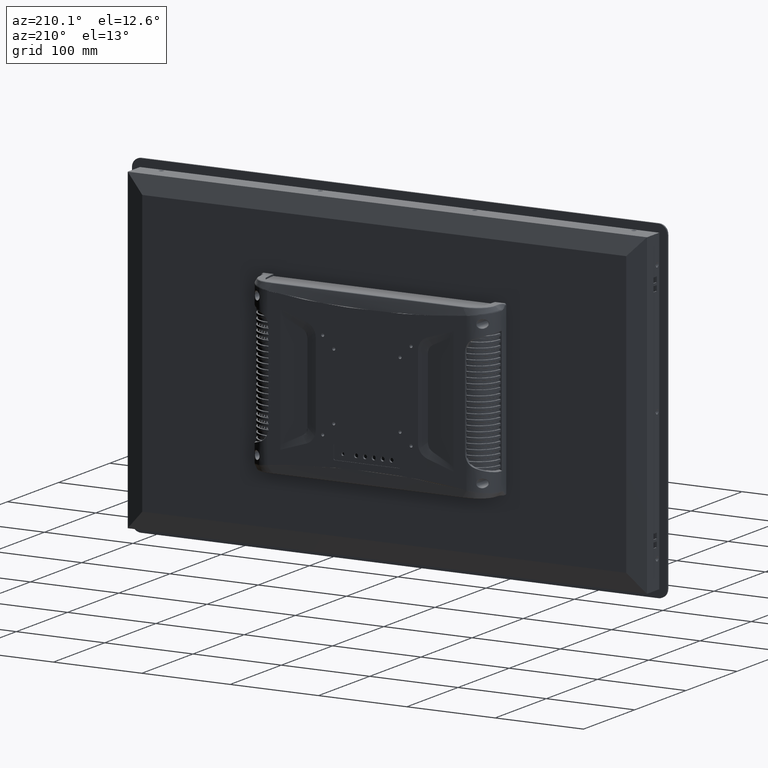
[diagram: clean part render]
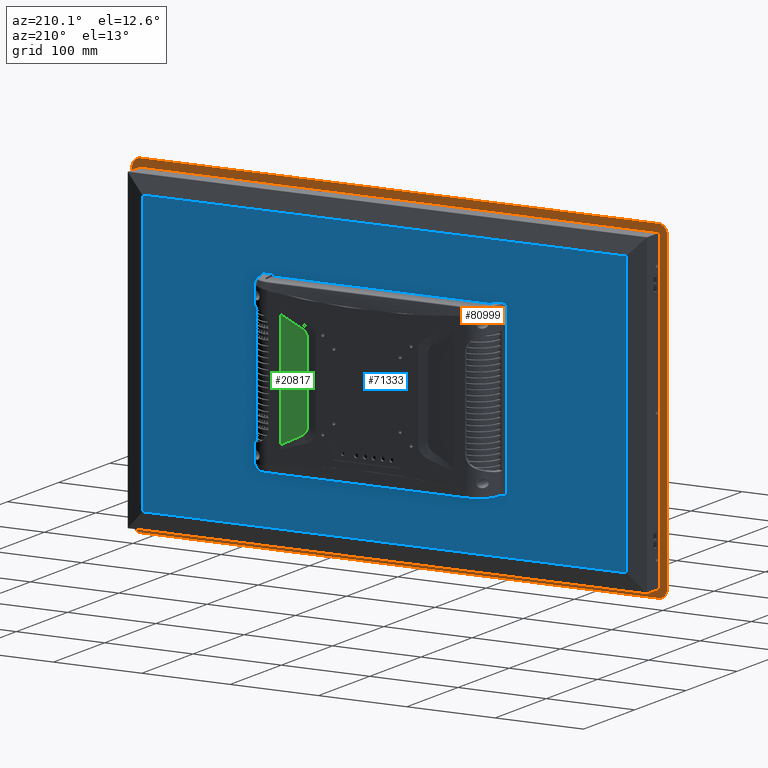
[diagram: same view with three faces highlighted in distinct colors, each labeled with its STEP entity id]
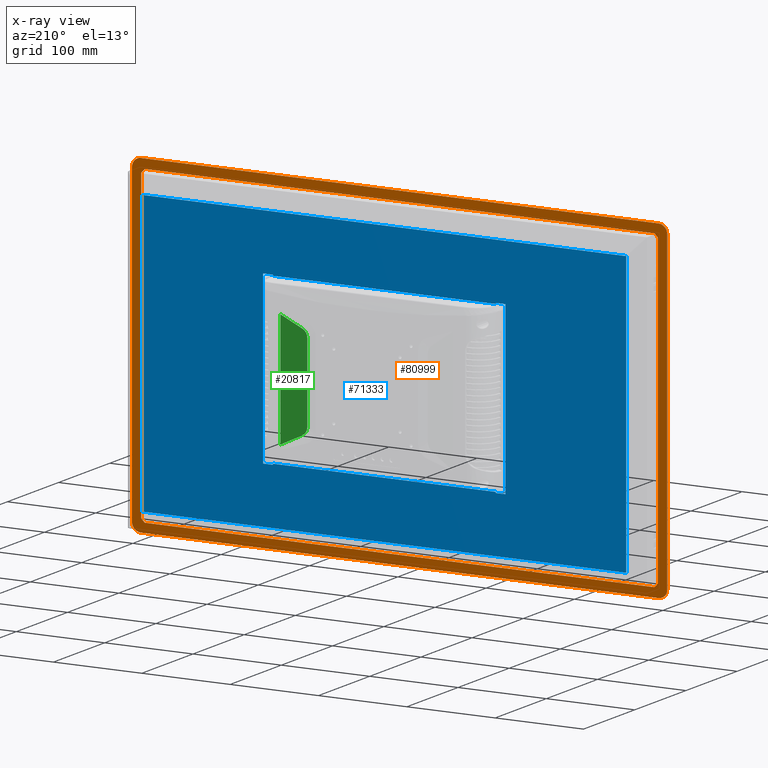
[diagram: x-ray of the same camera — body ghosted, the three highlighted faces saturated]
A machine part, auxiliary view with three faces highlighted in distinct colors.
The next image is the same camera in x-ray (body ghosted, the three faces saturated) — at least one of them is partly hidden behind the body in this view.
Their STEP definitions:

[orange] entity #80999 — the highlighted planar face has unit normal (0, 1, -0).
#396 = DIRECTION ( 'NONE',  ( -1.613629597899712099E-15, 1.000000000000000000, 3.895646460477871379E-15 ) ) ;
#571 = AXIS2_PLACEMENT_3D ( 'NONE', #88136, #396, #81314 ) ;
#803 = CARTESIAN_POINT ( 'NONE',  ( 291.9142135624997536, -3.500000000000000000, 174.0857864374998769 ) ) ;
#1245 = DIRECTION ( 'NONE',  ( -1.000000000000000000, 0.0000000000000000000, 0.0000000000000000000 ) ) ;
#1337 = VECTOR ( 'NONE', #32166, 1000.000000000000000 ) ;
#1345 = AXIS2_PLACEMENT_3D ( 'NONE', #53810, #70944, #87961 ) ;
#1992 = ORIENTED_EDGE ( 'NONE', *, *, #4823, .F. ) ;
#2088 = VERTEX_POINT ( 'NONE', #50259 ) ;
#2184 = DIRECTION ( 'NONE',  ( 1.613629597899712099E-15, 1.000000000000000000, -3.895646460477871379E-15 ) ) ;
#2190 = VERTEX_POINT ( 'NONE', #77764 ) ;
#2335 = DIRECTION ( 'NONE',  ( 1.000000000000000000, 8.673617379884460717E-17, 0.0000000000000000000 ) ) ;
#2538 = DIRECTION ( 'NONE',  ( -2.775557561565854944E-14, -3.903127820951983515E-15, -1.000000000000000000 ) ) ;
#2611 = EDGE_CURVE ( 'NONE', #47197, #62226, #105651, .T. ) ;
#3260 = CARTESIAN_POINT ( 'NONE',  ( -292.5000000000001137, -3.500000000000000000, 172.6715728752999723 ) ) ;
#4823 = EDGE_CURVE ( 'NONE', #47197, #2190, #12953, .T. ) ;
#4906 = CARTESIAN_POINT ( 'NONE',  ( 289.0857864375861936, -3.500000000000000444, 176.9142135624366574 ) ) ;
#5651 = CARTESIAN_POINT ( 'NONE',  ( -291.9142135624999810, -3.500000000000000000, -174.0857864374998485 ) ) ;
#6103 = DIRECTION ( 'NONE',  ( -0.0000000000000000000, 1.000000000000000000, -0.0000000000000000000 ) ) ;
#7342 = VERTEX_POINT ( 'NONE', #41118 ) ;
#7823 = EDGE_CURVE ( 'NONE', #82434, #17065, #44975, .T. ) ;
#8027 = EDGE_CURVE ( 'NONE', #50940, #7342, #48927, .T. ) ;
#8978 = VECTOR ( 'NONE', #10860, 1000.000000000000000 ) ;
#10708 = CARTESIAN_POINT ( 'NONE',  ( -287.6715728753000008, -3.500000000000007550, 175.5000000000024443 ) ) ;
#10860 = DIRECTION ( 'NONE',  ( 0.0000000000000000000, 0.0000000000000000000, -1.000000000000000000 ) ) ;
#11965 = VERTEX_POINT ( 'NONE', #45586 ) ;
#12953 = LINE ( 'NONE', #77428, #8978 ) ;
#13326 = EDGE_CURVE ( 'NONE', #102600, #11965, #35852, .T. ) ;
#13577 = LINE ( 'NONE', #803, #61465 ) ;
#14237 = DIRECTION ( 'NONE',  ( 0.7071067811865058284, 0.0000000000000000000, -0.7071067811865890951 ) ) ;
#14243 = VERTEX_POINT ( 'NONE', #84760 ) ;
#15514 = AXIS2_PLACEMENT_3D ( 'NONE', #70468, #53343, #86742 ) ;
#16037 = CIRCLE ( 'NONE', #1345, 10.00000000000023093 ) ;
#16038 = DIRECTION ( 'NONE',  ( 0.0000000000000000000, 0.0000000000000000000, 1.000000000000000000 ) ) ;
#16402 = CARTESIAN_POINT ( 'NONE',  ( -303.0000000000000000, -3.500000000000000000, 0.0000000000000000000 ) ) ;
#16493 = EDGE_CURVE ( 'NONE', #97668, #54382, #42688, .T. ) ;
#17065 = VERTEX_POINT ( 'NONE', #33161 ) ;
#17423 = VECTOR ( 'NONE', #27068, 1000.000000000000000 ) ;
#18135 = CARTESIAN_POINT ( 'NONE',  ( 303.0000000000000000, -3.500000000000000000, 178.0000000678504080 ) ) ;
#18627 = LINE ( 'NONE', #81234, #1337 ) ;
#18990 = EDGE_CURVE ( 'NONE', #94891, #43946, #36631, .T. ) ;
#20115 = LINE ( 'NONE', #20613, #82586 ) ;
#20375 = CIRCLE ( 'NONE', #65647, 1.999999999998419709 ) ;
#20613 = CARTESIAN_POINT ( 'NONE',  ( -289.0857864374995643, -3.500000000000000000, 176.9142135624995831 ) ) ;
#21157 = ORIENTED_EDGE ( 'NONE', *, *, #42877, .F. ) ;
#21217 = CARTESIAN_POINT ( 'NONE',  ( 287.6715728752998871, -3.500000000000003997, 175.5000000000012221 ) ) ;
#21941 = VERTEX_POINT ( 'NONE', #4906 ) ;
#22211 = DIRECTION ( 'NONE',  ( 0.0000000000000000000, -1.951563910475341736E-15, 1.000000000000000000 ) ) ;
#22634 = ORIENTED_EDGE ( 'NONE', *, *, #44583, .T. ) ;
#25866 = CIRCLE ( 'NONE', #15514, 9.999999999999371170 ) ;
#26084 = CARTESIAN_POINT ( 'NONE',  ( -290.5000000000017621, -3.500000000000000000, 172.6715728752999723 ) ) ;
#27068 = DIRECTION ( 'NONE',  ( 1.000000000000000000, -0.0000000000000000000, -0.0000000000000000000 ) ) ;
#27609 = CARTESIAN_POINT ( 'NONE',  ( 0.0000000000000000000, -3.500000000000000000, 177.4999999999998863 ) ) ;
#28144 = CIRCLE ( 'NONE', #94720, 1.999999999998530731 ) ;
#28436 = CARTESIAN_POINT ( 'NONE',  ( -291.9142135624368279, -3.499999999999999556, -174.0857864375859378 ) ) ;
#28643 = EDGE_CURVE ( 'NONE', #50940, #98925, #70562, .T. ) ;
#30292 = VECTOR ( 'NONE', #97528, 1000.000000000000000 ) ;
#30343 = AXIS2_PLACEMENT_3D ( 'NONE', #81571, #6103, #91160 ) ;
#32014 = ORIENTED_EDGE ( 'NONE', *, *, #75130, .T. ) ;
#32166 = DIRECTION ( 'NONE',  ( 1.000000000000000000, -0.0000000000000000000, -0.0000000000000000000 ) ) ;
#32562 = CARTESIAN_POINT ( 'NONE',  ( 289.0857864375856252, -3.499999999999999556, -176.9142135624369132 ) ) ;
#33029 = VECTOR ( 'NONE', #14237, 1000.000000000000114 ) ;
#33161 = CARTESIAN_POINT ( 'NONE',  ( -289.0857864375860800, -3.500000000000000000, -176.9142135624367995 ) ) ;
#33324 = FACE_OUTER_BOUND ( 'NONE', #93970, .T. ) ;
#33428 = EDGE_CURVE ( 'NONE', #82434, #7342, #20375, .T. ) ;
#33849 = CIRCLE ( 'NONE', #55847, 1.999999999998419709 ) ;
#34508 = DIRECTION ( 'NONE',  ( 3.895646460478641307E-15, -1.000000000000000000, 1.613629597900128815E-15 ) ) ;
#34519 = CARTESIAN_POINT ( 'NONE',  ( 291.9142135624283583, -3.500000000000000000, -174.0857864375945780 ) ) ;
#34626 = DIRECTION ( 'NONE',  ( -0.0000000000000000000, 1.000000000000000000, -0.0000000000000000000 ) ) ;
#34870 = CARTESIAN_POINT ( 'NONE',  ( 290.5000000000019895, -3.500000000000007550, 172.6715728753000008 ) ) ;
#35162 = ORIENTED_EDGE ( 'NONE', *, *, #103939, .T. ) ;
#35852 = LINE ( 'NONE', #16402, #38531 ) ;
#36039 = DIRECTION ( 'NONE',  ( -0.7071067811864989450, 0.0000000000000000000, 0.7071067811865962005 ) ) ;
#36631 = LINE ( 'NONE', #46473, #48614 ) ;
#38344 = VECTOR ( 'NONE', #70272, 1000.000000000000000 ) ;
#38531 = VECTOR ( 'NONE', #16038, 1000.000000000000000 ) ;
#38791 = CARTESIAN_POINT ( 'NONE',  ( -289.0857864375855115, -3.499999999999999556, 176.9142135624367995 ) ) ;
#38981 = AXIS2_PLACEMENT_3D ( 'NONE', #66305, #41051, #99670 ) ;
#39861 = AXIS2_PLACEMENT_3D ( 'NONE', #26084, #109971, #50993 ) ;
#40295 = EDGE_CURVE ( 'NONE', #2088, #94891, #107705, .T. ) ;
#40400 = ORIENTED_EDGE ( 'NONE', *, *, #28643, .F. ) ;
#41051 = DIRECTION ( 'NONE',  ( 0.0000000000000000000, 1.000000000000000000, -0.0000000000000000000 ) ) ;
#41118 = CARTESIAN_POINT ( 'NONE',  ( -292.5000000000001137, -3.499999999999999556, -172.6715728752999723 ) ) ;
#41721 = VERTEX_POINT ( 'NONE', #105187 ) ;
#42258 = AXIS2_PLACEMENT_3D ( 'NONE', #10708, #2184, #2538 ) ;
#42688 = LINE ( 'NONE', #27609, #85195 ) ;
#42877 = EDGE_CURVE ( 'NONE', #2190, #50858, #33849, .T. ) ;
#43946 = VERTEX_POINT ( 'NONE', #93174 ) ;
#44290 = VERTEX_POINT ( 'NONE', #74245 ) ;
#44526 = ORIENTED_EDGE ( 'NONE', *, *, #75147, .T. ) ;
#44583 = EDGE_CURVE ( 'NONE', #56780, #98925, #20115, .T. ) ;
#44975 = LINE ( 'NONE', #5651, #33029 ) ;
#45108 = EDGE_CURVE ( 'NONE', #41721, #78653, #18627, .T. ) ;
#45586 = CARTESIAN_POINT ( 'NONE',  ( -303.0000000000000000, -3.499999999999999556, 178.0000000076495894 ) ) ;
#46394 = ORIENTED_EDGE ( 'NONE', *, *, #16493, .T. ) ;
#46473 = CARTESIAN_POINT ( 'NONE',  ( 303.0000000000000000, -3.500000000000000000, 0.0000000000000000000 ) ) ;
#46840 = DIRECTION ( 'NONE',  ( -0.0000000000000000000, -0.0000000000000000000, -1.000000000000000000 ) ) ;
#46882 = CIRCLE ( 'NONE', #53751, 1.999999999998919309 ) ;
#47197 = VERTEX_POINT ( 'NONE', #91065 ) ;
#47479 = DIRECTION ( 'NONE',  ( 0.0000000000000000000, 0.0000000000000000000, 1.000000000000000000 ) ) ;
#47571 = CARTESIAN_POINT ( 'NONE',  ( -303.0000000000000000, -3.500000000000000444, -178.0000000678504080 ) ) ;
#48614 = VECTOR ( 'NONE', #46840, 1000.000000000000000 ) ;
#48845 = ORIENTED_EDGE ( 'NONE', *, *, #2611, .T. ) ;
#48927 = LINE ( 'NONE', #106025, #30292 ) ;
#49841 = ORIENTED_EDGE ( 'NONE', *, *, #51064, .F. ) ;
#50259 = CARTESIAN_POINT ( 'NONE',  ( 293.0000000076500442, -3.500000000000000000, 188.0000000000000000 ) ) ;
#50858 = VERTEX_POINT ( 'NONE', #34519 ) ;
#50940 = VERTEX_POINT ( 'NONE', #3260 ) ;
#50993 = DIRECTION ( 'NONE',  ( 0.0000000000000000000, 0.0000000000000000000, 1.000000000000000000 ) ) ;
#51064 = EDGE_CURVE ( 'NONE', #41721, #17065, #28144, .T. ) ;
#52068 = DIRECTION ( 'NONE',  ( -2.775557561565084384E-14, 0.0000000000000000000, -1.000000000000000000 ) ) ;
#53343 = DIRECTION ( 'NONE',  ( -0.0000000000000000000, 1.000000000000000000, -0.0000000000000000000 ) ) ;
#53751 = AXIS2_PLACEMENT_3D ( 'NONE', #21217, #97689, #89537 ) ;
#53810 = CARTESIAN_POINT ( 'NONE',  ( -293.0000000000000000, -3.499999999999999112, 177.9999999999991758 ) ) ;
#54382 = VERTEX_POINT ( 'NONE', #55948 ) ;
#55847 = AXIS2_PLACEMENT_3D ( 'NONE', #83844, #67168, #47479 ) ;
#55948 = CARTESIAN_POINT ( 'NONE',  ( -287.6715728753000008, -3.499999999999999556, 177.4999999999999432 ) ) ;
#56684 = ORIENTED_EDGE ( 'NONE', *, *, #40295, .T. ) ;
#56776 = ORIENTED_EDGE ( 'NONE', *, *, #18990, .T. ) ;
#56780 = VERTEX_POINT ( 'NONE', #38791 ) ;
#60879 = ORIENTED_EDGE ( 'NONE', *, *, #8027, .T. ) ;
#60994 = CARTESIAN_POINT ( 'NONE',  ( -290.5000000000017621, -3.499999999999999556, -172.6715728752999723 ) ) ;
#61465 = VECTOR ( 'NONE', #36039, 999.9999999999998863 ) ;
#62226 = VERTEX_POINT ( 'NONE', #62592 ) ;
#62425 = DIRECTION ( 'NONE',  ( 0.7071067811866029729, 0.0000000000000000000, 0.7071067811864919506 ) ) ;
#62592 = CARTESIAN_POINT ( 'NONE',  ( 291.9142135624369416, -3.499999999999999556, 174.0857864375858810 ) ) ;
#64762 = CARTESIAN_POINT ( 'NONE',  ( -291.9142135624367143, -3.500000000000000000, 174.0857864375861084 ) ) ;
#64865 = EDGE_CURVE ( 'NONE', #62226, #21941, #13577, .T. ) ;
#65617 = VERTEX_POINT ( 'NONE', #93349 ) ;
#65647 = AXIS2_PLACEMENT_3D ( 'NONE', #60994, #34626, #52068 ) ;
#66305 = CARTESIAN_POINT ( 'NONE',  ( 303.0000000000000000, -3.500000000000000000, -188.0000000000000000 ) ) ;
#66686 = LINE ( 'NONE', #87590, #17423 ) ;
#67168 = DIRECTION ( 'NONE',  ( 0.0000000000000000000, 1.000000000000000000, 0.0000000000000000000 ) ) ;
#67735 = ORIENTED_EDGE ( 'NONE', *, *, #7823, .T. ) ;
#70272 = DIRECTION ( 'NONE',  ( -1.000000000000000000, 0.0000000000000000000, 0.0000000000000000000 ) ) ;
#70468 = CARTESIAN_POINT ( 'NONE',  ( 293.0000000000010800, -3.500000000000000000, -178.0000000000000000 ) ) ;
#70562 = CIRCLE ( 'NONE', #39861, 1.999999999998419709 ) ;
#70944 = DIRECTION ( 'NONE',  ( -7.279431757634443708E-17, 1.000000000000000000, 7.348364109617076568E-17 ) ) ;
#74056 = CIRCLE ( 'NONE', #76609, 9.999999999999509726 ) ;
#74245 = CARTESIAN_POINT ( 'NONE',  ( -293.0000000076500442, -3.500000000000000444, -188.0000000000000000 ) ) ;
#75130 = EDGE_CURVE ( 'NONE', #65617, #2088, #66686, .T. ) ;
#75147 = EDGE_CURVE ( 'NONE', #11965, #65617, #16037, .T. ) ;
#75462 = ORIENTED_EDGE ( 'NONE', *, *, #97298, .F. ) ;
#76609 = AXIS2_PLACEMENT_3D ( 'NONE', #96632, #95546, #2335 ) ;
#77428 = CARTESIAN_POINT ( 'NONE',  ( 292.5000000000000000, -3.500000000000000000, 0.0000000000000000000 ) ) ;
#77764 = CARTESIAN_POINT ( 'NONE',  ( 292.5000000000000000, -3.499999999999999556, -172.6715728752999723 ) ) ;
#78073 = ORIENTED_EDGE ( 'NONE', *, *, #33428, .F. ) ;
#78653 = VERTEX_POINT ( 'NONE', #82995 ) ;
#80141 = EDGE_CURVE ( 'NONE', #85314, #50858, #98696, .T. ) ;
#80418 = DIRECTION ( 'NONE',  ( -0.7071067811866377228, 0.0000000000000000000, -0.7071067811864573116 ) ) ;
#80999 = ADVANCED_FACE ( 'NONE', ( #83816, #33324 ), #81922, .T. ) ;
#81234 = CARTESIAN_POINT ( 'NONE',  ( 0.0000000000000000000, -3.500000000000000000, -177.5000000000000000 ) ) ;
#81270 = DIRECTION ( 'NONE',  ( 8.068147989364413714E-16, 1.000000000000000000, 1.947823230173387265E-15 ) ) ;
#81314 = DIRECTION ( 'NONE',  ( -8.326672684697564831E-14, 3.903127820951983515E-15, -1.000000000000000000 ) ) ;
#81571 = CARTESIAN_POINT ( 'NONE',  ( 293.0000000000000000, -3.500000000000000000, 178.0000000000008242 ) ) ;
#81922 = PLANE ( 'NONE',  #38981 ) ;
#82057 = AXIS2_PLACEMENT_3D ( 'NONE', #34870, #34508, #102044 ) ;
#82434 = VERTEX_POINT ( 'NONE', #28436 ) ;
#82586 = VECTOR ( 'NONE', #80418, 1000.000000000000114 ) ;
#82995 = CARTESIAN_POINT ( 'NONE',  ( 287.6715728753000008, -3.499999999999999556, -177.5000000000000000 ) ) ;
#83093 = ORIENTED_EDGE ( 'NONE', *, *, #80141, .T. ) ;
#83816 = FACE_BOUND ( 'NONE', #88430, .T. ) ;
#83844 = CARTESIAN_POINT ( 'NONE',  ( 290.5000000000017621, -3.500000000000000000, -172.6715728752999723 ) ) ;
#84760 = CARTESIAN_POINT ( 'NONE',  ( 293.0000000678505785, -3.500000000000000000, -188.0000000000000000 ) ) ;
#85195 = VECTOR ( 'NONE', #1245, 1000.000000000000000 ) ;
#85314 = VERTEX_POINT ( 'NONE', #32562 ) ;
#86742 = DIRECTION ( 'NONE',  ( 0.0000000000000000000, 0.0000000000000000000, -1.000000000000000000 ) ) ;
#87590 = CARTESIAN_POINT ( 'NONE',  ( 0.0000000000000000000, -3.500000000000000000, 188.0000000000000000 ) ) ;
#87631 = CARTESIAN_POINT ( 'NONE',  ( 289.0857864374997916, -3.500000000000000000, -176.9142135624997536 ) ) ;
#87961 = DIRECTION ( 'NONE',  ( 0.0000000000000000000, 8.673617379883835792E-17, -1.000000000000000000 ) ) ;
#88089 = VECTOR ( 'NONE', #62425, 1000.000000000000114 ) ;
#88136 = CARTESIAN_POINT ( 'NONE',  ( 287.6715728753000008, -3.500000000000007550, -175.5000000000024443 ) ) ;
#88287 = EDGE_CURVE ( 'NONE', #43946, #14243, #25866, .T. ) ;
#88430 = EDGE_LOOP ( 'NONE', ( #49841, #106344, #98699, #83093, #21157, #1992, #48845, #101022, #75462, #46394, #98367, #22634, #40400, #60879, #78073, #67735 ) ) ;
#89537 = DIRECTION ( 'NONE',  ( 0.0000000000000000000, 1.951563910474962688E-15, 1.000000000000000000 ) ) ;
#90665 = CIRCLE ( 'NONE', #42258, 1.999999999997864597 ) ;
#91065 = CARTESIAN_POINT ( 'NONE',  ( 292.5000000000000000, -3.499999999999999556, 172.6715728753000008 ) ) ;
#91160 = DIRECTION ( 'NONE',  ( 0.0000000000000000000, 0.0000000000000000000, -1.000000000000000000 ) ) ;
#93174 = CARTESIAN_POINT ( 'NONE',  ( 303.0000000000000000, -3.500000000000000000, -178.0000000076499873 ) ) ;
#93349 = CARTESIAN_POINT ( 'NONE',  ( -293.0000000678500669, -3.499999999999999556, 188.0000000000000000 ) ) ;
#93970 = EDGE_LOOP ( 'NONE', ( #35162, #98481, #44526, #32014, #56684, #56776, #109083, #106698 ) ) ;
#94720 = AXIS2_PLACEMENT_3D ( 'NONE', #106421, #81270, #22211 ) ;
#94891 = VERTEX_POINT ( 'NONE', #18135 ) ;
#95391 = EDGE_CURVE ( 'NONE', #85314, #78653, #103130, .T. ) ;
#95440 = LINE ( 'NONE', #105035, #38344 ) ;
#95546 = DIRECTION ( 'NONE',  ( -7.348364105418206628E-17, 1.000000000000000000, -7.279431755790271801E-17 ) ) ;
#96632 = CARTESIAN_POINT ( 'NONE',  ( -293.0000000000000000, -3.499999999999999556, -178.0000000000008242 ) ) ;
#97298 = EDGE_CURVE ( 'NONE', #97668, #21941, #46882, .T. ) ;
#97528 = DIRECTION ( 'NONE',  ( -0.0000000000000000000, -0.0000000000000000000, -1.000000000000000000 ) ) ;
#97668 = VERTEX_POINT ( 'NONE', #105147 ) ;
#97689 = DIRECTION ( 'NONE',  ( -8.068147989366251760E-16, 1.000000000000000000, -1.947823230173831393E-15 ) ) ;
#98367 = ORIENTED_EDGE ( 'NONE', *, *, #102778, .F. ) ;
#98481 = ORIENTED_EDGE ( 'NONE', *, *, #13326, .T. ) ;
#98696 = LINE ( 'NONE', #87631, #88089 ) ;
#98699 = ORIENTED_EDGE ( 'NONE', *, *, #95391, .F. ) ;
#98925 = VERTEX_POINT ( 'NONE', #64762 ) ;
#99102 = EDGE_CURVE ( 'NONE', #14243, #44290, #95440, .T. ) ;
#99670 = DIRECTION ( 'NONE',  ( -1.000000000000000000, 0.0000000000000000000, 0.0000000000000000000 ) ) ;
#101022 = ORIENTED_EDGE ( 'NONE', *, *, #64865, .T. ) ;
#102044 = DIRECTION ( 'NONE',  ( 1.000000000000000000, 3.903127820951170988E-15, 0.0000000000000000000 ) ) ;
#102600 = VERTEX_POINT ( 'NONE', #47571 ) ;
#102778 = EDGE_CURVE ( 'NONE', #56780, #54382, #90665, .T. ) ;
#103130 = CIRCLE ( 'NONE', #571, 1.999999999997864597 ) ;
#103939 = EDGE_CURVE ( 'NONE', #44290, #102600, #74056, .T. ) ;
#105035 = CARTESIAN_POINT ( 'NONE',  ( 0.0000000000000000000, -3.500000000000000000, -188.0000000000000000 ) ) ;
#105147 = CARTESIAN_POINT ( 'NONE',  ( 287.6715728752999439, -3.500000000000000444, 177.4999999999999432 ) ) ;
#105187 = CARTESIAN_POINT ( 'NONE',  ( -287.6715728753000008, -3.500000000000000000, -177.5000000000000000 ) ) ;
#105651 = CIRCLE ( 'NONE', #82057, 1.999999999998280931 ) ;
#106025 = CARTESIAN_POINT ( 'NONE',  ( -292.5000000000001705, -3.500000000000000000, 0.0000000000000000000 ) ) ;
#106344 = ORIENTED_EDGE ( 'NONE', *, *, #45108, .T. ) ;
#106421 = CARTESIAN_POINT ( 'NONE',  ( -287.6715728753000008, -3.500000000000003997, -175.5000000000016200 ) ) ;
#106698 = ORIENTED_EDGE ( 'NONE', *, *, #99102, .T. ) ;
#107705 = CIRCLE ( 'NONE', #30343, 9.999999999999509726 ) ;
#109083 = ORIENTED_EDGE ( 'NONE', *, *, #88287, .T. ) ;
#109971 = DIRECTION ( 'NONE',  ( 0.0000000000000000000, 1.000000000000000000, 0.0000000000000000000 ) ) ;

[blue] entity #71333 — the highlighted planar face has unit normal (0, 1, -0).
#744 = LINE ( 'NONE', #69084, #73920 ) ;
#919 = VECTOR ( 'NONE', #18249, 1000.000000000000000 ) ;
#1392 = VERTEX_POINT ( 'NONE', #108345 ) ;
#3057 = ORIENTED_EDGE ( 'NONE', *, *, #57595, .T. ) ;
#3092 = VERTEX_POINT ( 'NONE', #99610 ) ;
#4354 = VECTOR ( 'NONE', #59157, 1000.000000000000000 ) ;
#4460 = DIRECTION ( 'NONE',  ( -5.560548669356719033E-08, 0.0000000000000000000, -0.9999999999999984457 ) ) ;
#4909 = VECTOR ( 'NONE', #52850, 1000.000000000000000 ) ;
#5423 = ORIENTED_EDGE ( 'NONE', *, *, #48982, .T. ) ;
#5842 = LINE ( 'NONE', #74845, #49792 ) ;
#6615 = VERTEX_POINT ( 'NONE', #66016 ) ;
#7296 = CARTESIAN_POINT ( 'NONE',  ( 0.0000000000000000000, 26.50000000000000000, -95.37187460944996076 ) ) ;
#7553 = CARTESIAN_POINT ( 'NONE',  ( 137.2432382599001244, 26.50000000000000000, 95.37187460944005579 ) ) ;
#8473 = VECTOR ( 'NONE', #47453, 1000.000000000000000 ) ;
#8779 = EDGE_CURVE ( 'NONE', #34473, #78817, #105640, .T. ) ;
#9981 = VECTOR ( 'NONE', #20478, 1000.000000000000000 ) ;
#12296 = DIRECTION ( 'NONE',  ( -0.0000000000000000000, -0.0000000000000000000, -1.000000000000000000 ) ) ;
#12997 = EDGE_LOOP ( 'NONE', ( #100893, #61208, #81059, #75964 ) ) ;
#17931 = VERTEX_POINT ( 'NONE', #55880 ) ;
#18249 = DIRECTION ( 'NONE',  ( 0.0000000000000000000, 0.0000000000000000000, 1.000000000000000000 ) ) ;
#19309 = CARTESIAN_POINT ( 'NONE',  ( -131.7552649037500032, 26.50000000000000000, 95.37187460944001316 ) ) ;
#19604 = EDGE_CURVE ( 'NONE', #29813, #51937, #61714, .T. ) ;
#20036 = VECTOR ( 'NONE', #37126, 1000.000000000000000 ) ;
#20478 = DIRECTION ( 'NONE',  ( 1.000000000000000000, -0.0000000000000000000, -0.0000000000000000000 ) ) ;
#22904 = CARTESIAN_POINT ( 'NONE',  ( -126.2552631360002238, 26.50000000000000000, 0.0000000000000000000 ) ) ;
#24170 = EDGE_LOOP ( 'NONE', ( #65911, #3057, #95593, #36422, #38379, #66921, #26776, #94888, #38408, #70993, #5423, #44284 ) ) ;
#25020 = DIRECTION ( 'NONE',  ( -1.000000000000000000, 0.0000000000000000000, 0.0000000000000000000 ) ) ;
#25358 = CARTESIAN_POINT ( 'NONE',  ( 0.0000000000000000000, 26.50000000000000000, 158.9000000000000057 ) ) ;
#25613 = VECTOR ( 'NONE', #73051, 1000.000000000000000 ) ;
#25776 = LINE ( 'NONE', #31982, #51054 ) ;
#26776 = ORIENTED_EDGE ( 'NONE', *, *, #33756, .T. ) ;
#27148 = EDGE_CURVE ( 'NONE', #55988, #1392, #92049, .T. ) ;
#27690 = CARTESIAN_POINT ( 'NONE',  ( -126.2552631360000532, 26.50000000000000000, 95.37187460944002737 ) ) ;
#29813 = VERTEX_POINT ( 'NONE', #31371 ) ;
#30866 = CARTESIAN_POINT ( 'NONE',  ( -137.2552737423999361, 26.50000000000000000, -95.37187460944996076 ) ) ;
#31157 = VECTOR ( 'NONE', #66773, 1000.000000000000000 ) ;
#31371 = CARTESIAN_POINT ( 'NONE',  ( -126.2552631360000532, 26.50000000000000000, 94.27187460945002329 ) ) ;
#31982 = CARTESIAN_POINT ( 'NONE',  ( 126.2552313167999927, 26.50000000000000355, 0.0000000000000000000 ) ) ;
#32847 = EDGE_CURVE ( 'NONE', #85339, #77145, #45872, .T. ) ;
#33756 = EDGE_CURVE ( 'NONE', #17931, #100122, #38924, .T. ) ;
#34473 = VERTEX_POINT ( 'NONE', #67440 ) ;
#36422 = ORIENTED_EDGE ( 'NONE', *, *, #101468, .T. ) ;
#36514 = EDGE_CURVE ( 'NONE', #103003, #55988, #82044, .T. ) ;
#37126 = DIRECTION ( 'NONE',  ( 1.000000000000000000, -0.0000000000000000000, -0.0000000000000000000 ) ) ;
#38379 = ORIENTED_EDGE ( 'NONE', *, *, #19604, .T. ) ;
#38408 = ORIENTED_EDGE ( 'NONE', *, *, #59126, .T. ) ;
#38924 = LINE ( 'NONE', #90234, #103963 ) ;
#38976 = VERTEX_POINT ( 'NONE', #64098 ) ;
#39198 = CARTESIAN_POINT ( 'NONE',  ( 273.8999999999999773, 26.50000000000000000, 0.0000000000000000000 ) ) ;
#39302 = CARTESIAN_POINT ( 'NONE',  ( -273.8999999999999204, 26.49999999999986144, -158.8999999999998636 ) ) ;
#41384 = DIRECTION ( 'NONE',  ( -0.0001261396947825021671, 0.0000000000000000000, 0.9999999920443887191 ) ) ;
#42158 = LINE ( 'NONE', #105108, #4909 ) ;
#42216 = CARTESIAN_POINT ( 'NONE',  ( -273.8999999999998067, 26.49999999999986144, 158.8999999999999773 ) ) ;
#42918 = EDGE_CURVE ( 'NONE', #38976, #3092, #93579, .T. ) ;
#43122 = VECTOR ( 'NONE', #100868, 1000.000000000000000 ) ;
#43225 = DIRECTION ( 'NONE',  ( 0.0000000000000000000, 1.000000000000000000, -0.0000000000000000000 ) ) ;
#43419 = EDGE_CURVE ( 'NONE', #1392, #6615, #52277, .T. ) ;
#43493 = VERTEX_POINT ( 'NONE', #7553 ) ;
#44284 = ORIENTED_EDGE ( 'NONE', *, *, #42918, .T. ) ;
#45872 = LINE ( 'NONE', #92311, #79162 ) ;
#47453 = DIRECTION ( 'NONE',  ( 0.0000000000000000000, 0.0000000000000000000, 1.000000000000000000 ) ) ;
#48982 = EDGE_CURVE ( 'NONE', #78817, #38976, #25776, .T. ) ;
#49792 = VECTOR ( 'NONE', #41384, 1000.000000000000000 ) ;
#50233 = EDGE_CURVE ( 'NONE', #3092, #43493, #5842, .T. ) ;
#50424 = CARTESIAN_POINT ( 'NONE',  ( 0.0000000000000000000, 26.50000000000000000, -95.37187460944996076 ) ) ;
#51054 = VECTOR ( 'NONE', #12296, 1000.000000000000000 ) ;
#51937 = VERTEX_POINT ( 'NONE', #27690 ) ;
#52277 = LINE ( 'NONE', #39198, #25613 ) ;
#52331 = DIRECTION ( 'NONE',  ( -1.000000000000000000, 0.0000000000000000000, 0.0000000000000000000 ) ) ;
#52850 = DIRECTION ( 'NONE',  ( 0.0000000000000000000, 0.0000000000000000000, 1.000000000000000000 ) ) ;
#52914 = AXIS2_PLACEMENT_3D ( 'NONE', #76346, #43225, #25020 ) ;
#53271 = FACE_BOUND ( 'NONE', #24170, .T. ) ;
#55880 = CARTESIAN_POINT ( 'NONE',  ( -137.2552631360009343, 26.50000000000000000, 95.37187460943999895 ) ) ;
#55988 = VERTEX_POINT ( 'NONE', #42216 ) ;
#57595 = EDGE_CURVE ( 'NONE', #43493, #85339, #65267, .T. ) ;
#57702 = EDGE_CURVE ( 'NONE', #17931, #51937, #85149, .T. ) ;
#57809 = DIRECTION ( 'NONE',  ( -0.0000000000000000000, -0.0000000000000000000, -1.000000000000000000 ) ) ;
#59126 = EDGE_CURVE ( 'NONE', #99879, #34473, #42158, .T. ) ;
#59157 = DIRECTION ( 'NONE',  ( 1.000000000000000000, -0.0000000000000000000, -0.0000000000000000000 ) ) ;
#61208 = ORIENTED_EDGE ( 'NONE', *, *, #43419, .T. ) ;
#61714 = LINE ( 'NONE', #22904, #8473 ) ;
#62118 = CARTESIAN_POINT ( 'NONE',  ( 0.0000000000000000000, 26.50000000000000000, -94.27187460945987141 ) ) ;
#64098 = CARTESIAN_POINT ( 'NONE',  ( 126.2552313167999927, 26.50000000000000000, -95.37187460944997497 ) ) ;
#65267 = LINE ( 'NONE', #103199, #75952 ) ;
#65575 = PLANE ( 'NONE',  #52914 ) ;
#65911 = ORIENTED_EDGE ( 'NONE', *, *, #50233, .T. ) ;
#66016 = CARTESIAN_POINT ( 'NONE',  ( 273.8999999999999204, 26.49999999999986500, -158.8999999999999204 ) ) ;
#66773 = DIRECTION ( 'NONE',  ( 1.000000000000000000, -0.0000000000000000000, -0.0000000000000000000 ) ) ;
#66921 = ORIENTED_EDGE ( 'NONE', *, *, #57702, .F. ) ;
#67440 = CARTESIAN_POINT ( 'NONE',  ( -126.2552313167999927, 26.50000000000000000, -94.27187460945992825 ) ) ;
#68367 = VECTOR ( 'NONE', #81654, 1000.000000000000000 ) ;
#69084 = CARTESIAN_POINT ( 'NONE',  ( 0.0000000000000000000, 26.50000000000000000, 94.27187460945009434 ) ) ;
#69525 = CARTESIAN_POINT ( 'NONE',  ( -273.8999999999999773, 26.50000000000000000, 0.0000000000000000000 ) ) ;
#70993 = ORIENTED_EDGE ( 'NONE', *, *, #8779, .T. ) ;
#71333 = ADVANCED_FACE ( 'NONE', ( #53271, #87665 ), #65575, .T. ) ;
#73051 = DIRECTION ( 'NONE',  ( -0.0000000000000000000, -0.0000000000000000000, -1.000000000000000000 ) ) ;
#73920 = VECTOR ( 'NONE', #52331, 1000.000000000000000 ) ;
#74845 = CARTESIAN_POINT ( 'NONE',  ( 137.2672986183998205, 26.50000000000000000, -95.37187460944996076 ) ) ;
#75952 = VECTOR ( 'NONE', #86523, 1000.000000000000000 ) ;
#75964 = ORIENTED_EDGE ( 'NONE', *, *, #36514, .T. ) ;
#76346 = CARTESIAN_POINT ( 'NONE',  ( 273.8999999999999773, 26.50000000000000000, -158.9000000000000057 ) ) ;
#77145 = VERTEX_POINT ( 'NONE', #97452 ) ;
#78817 = VERTEX_POINT ( 'NONE', #88844 ) ;
#79162 = VECTOR ( 'NONE', #57809, 1000.000000000000000 ) ;
#81059 = ORIENTED_EDGE ( 'NONE', *, *, #91449, .T. ) ;
#81654 = DIRECTION ( 'NONE',  ( -1.000000000000000000, 0.0000000000000000000, 0.0000000000000000000 ) ) ;
#82044 = LINE ( 'NONE', #69525, #919 ) ;
#84416 = LINE ( 'NONE', #107576, #68367 ) ;
#85149 = LINE ( 'NONE', #19309, #20036 ) ;
#85339 = VERTEX_POINT ( 'NONE', #91946 ) ;
#86523 = DIRECTION ( 'NONE',  ( -1.000000000000000000, 0.0000000000000000000, 0.0000000000000000000 ) ) ;
#87665 = FACE_OUTER_BOUND ( 'NONE', #12997, .T. ) ;
#88844 = CARTESIAN_POINT ( 'NONE',  ( 126.2552313167999927, 26.50000000000000000, -94.27187460945998509 ) ) ;
#90234 = CARTESIAN_POINT ( 'NONE',  ( -137.2552772749109238, 26.50000000000000000, -158.8999771375107173 ) ) ;
#91449 = EDGE_CURVE ( 'NONE', #6615, #103003, #84416, .T. ) ;
#91534 = EDGE_CURVE ( 'NONE', #100122, #99879, #92270, .T. ) ;
#91946 = CARTESIAN_POINT ( 'NONE',  ( 126.2552631360000532, 26.50000000000000000, 95.37187460944002737 ) ) ;
#92049 = LINE ( 'NONE', #25358, #4354 ) ;
#92270 = LINE ( 'NONE', #7296, #31157 ) ;
#92311 = CARTESIAN_POINT ( 'NONE',  ( 126.2552631360001669, 26.50000000000000000, 0.0000000000000000000 ) ) ;
#93579 = LINE ( 'NONE', #50424, #43122 ) ;
#94888 = ORIENTED_EDGE ( 'NONE', *, *, #91534, .T. ) ;
#95593 = ORIENTED_EDGE ( 'NONE', *, *, #32847, .T. ) ;
#97452 = CARTESIAN_POINT ( 'NONE',  ( 126.2552631360000532, 26.50000000000000000, 94.27187460945002329 ) ) ;
#99610 = CARTESIAN_POINT ( 'NONE',  ( 137.2672986183999342, 26.50000000000000000, -95.37187460944997497 ) ) ;
#99879 = VERTEX_POINT ( 'NONE', #100349 ) ;
#100122 = VERTEX_POINT ( 'NONE', #30866 ) ;
#100349 = CARTESIAN_POINT ( 'NONE',  ( -126.2552313167999927, 26.50000000000000000, -95.37187460944998918 ) ) ;
#100868 = DIRECTION ( 'NONE',  ( 1.000000000000000000, -0.0000000000000000000, -0.0000000000000000000 ) ) ;
#100893 = ORIENTED_EDGE ( 'NONE', *, *, #27148, .T. ) ;
#101468 = EDGE_CURVE ( 'NONE', #77145, #29813, #744, .T. ) ;
#103003 = VERTEX_POINT ( 'NONE', #39302 ) ;
#103199 = CARTESIAN_POINT ( 'NONE',  ( 0.0000000000000000000, 26.50000000000000000, 95.37187460944009842 ) ) ;
#103963 = VECTOR ( 'NONE', #4460, 1000.000000000000000 ) ;
#105108 = CARTESIAN_POINT ( 'NONE',  ( -126.2552313167999927, 26.50000000000000000, 0.0000000000000000000 ) ) ;
#105640 = LINE ( 'NONE', #62118, #9981 ) ;
#107576 = CARTESIAN_POINT ( 'NONE',  ( 0.0000000000000000000, 26.50000000000000000, -158.9000000000000057 ) ) ;
#108345 = CARTESIAN_POINT ( 'NONE',  ( 273.8999999999999204, 26.49999999999986144, 158.8999999999998636 ) ) ;

[green] entity #20817 — the highlighted planar face has unit normal (-0.0506, 0.9987, -0).
#1564 = B_SPLINE_CURVE_WITH_KNOTS ( 'NONE', 3,
 ( #83638, #109951, #24967, #75540 ),
 .UNSPECIFIED., .F., .F.,
 ( 4, 4 ),
 ( 0.0000000000000000000, 1.000000000000000000 ),
 .UNSPECIFIED. ) ;
#2468 = VERTEX_POINT ( 'NONE', #82127 ) ;
#2907 = CARTESIAN_POINT ( 'NONE',  ( 73.99967263947529261, 59.29789820887586416, -53.69488254385082371 ) ) ;
#3985 = CARTESIAN_POINT ( 'NONE',  ( 73.82717142885550743, 59.29044443794775532, -53.60965343396526350 ) ) ;
#4079 = CARTESIAN_POINT ( 'NONE',  ( 97.99439348034529473, 60.51406738793999551, 0.0001730840934616755173 ) ) ;
#4408 = CARTESIAN_POINT ( 'NONE',  ( 72.99430241173664058, 59.24761265044809022, -53.19988156090440867 ) ) ;
#5464 = B_SPLINE_CURVE_WITH_KNOTS ( 'NONE', 3,
 ( #104477, #45526, #87102, #79359 ),
 .UNSPECIFIED., .F., .F.,
 ( 4, 4 ),
 ( 0.0000000000000000000, 1.000000000000000000 ),
 .UNSPECIFIED. ) ;
#7364 = CARTESIAN_POINT ( 'NONE',  ( 70.24020600263523306, 59.10809636806285994, -50.70634099876592416 ) ) ;
#8407 = AXIS2_PLACEMENT_3D ( 'NONE', #45999, #96808, #104575 ) ;
#10184 = CARTESIAN_POINT ( 'NONE',  ( 68.24095132232649519, 59.00682711662386026, 39.83741599240801179 ) ) ;
#10420 = EDGE_CURVE ( 'NONE', #2468, #71005, #5464, .T. ) ;
#10865 = CARTESIAN_POINT ( 'NONE',  ( 69.26026816509258310, 59.05846378804917407, 49.13234580427176468 ) ) ;
#11980 = CARTESIAN_POINT ( 'NONE',  ( 73.99967263947529261, 59.29789820887586416, -53.69488254385082371 ) ) ;
#12160 = EDGE_LOOP ( 'NONE', ( #81475, #38954, #70873, #103544, #54276, #90618, #54942, #45913, #53525, #54702 ) ) ;
#13269 = CARTESIAN_POINT ( 'NONE',  ( 68.24100829052223105, 59.00682710363609829, 13.27921785093512064 ) ) ;
#14529 = B_SPLINE_CURVE_WITH_KNOTS ( 'NONE', 3,
 ( #28725, #89207, #30204, #11980 ),
 .UNSPECIFIED., .F., .F.,
 ( 4, 4 ),
 ( 0.0000000000000000000, 1.000000000000000000 ),
 .UNSPECIFIED. ) ;
#15201 = CARTESIAN_POINT ( 'NONE',  ( 68.24150737418308665, 59.00684712325463011, -45.56488282988050287 ) ) ;
#17106 = CARTESIAN_POINT ( 'NONE',  ( 97.99427783864030062, 60.51406738793688334, 65.50017302117379359 ) ) ;
#19785 = CARTESIAN_POINT ( 'NONE',  ( 72.22830682603679975, 59.20881845762884410, 52.67940660181783130 ) ) ;
#20121 = VERTEX_POINT ( 'NONE', #10184 ) ;
#20817 = ADVANCED_FACE ( 'NONE', ( #69026 ), #37796, .T. ) ;
#23346 = B_SPLINE_CURVE_WITH_KNOTS ( 'NONE', 3,
 ( #106792, #81998, #13269, #31466 ),
 .UNSPECIFIED., .F., .F.,
 ( 4, 4 ),
 ( 0.0000000000000000000, 1.000000000000000000 ),
 .UNSPECIFIED. ) ;
#23465 = CARTESIAN_POINT ( 'NONE',  ( 73.82699613473702982, 59.29041503851469486, 53.61000089211800201 ) ) ;
#23756 = CARTESIAN_POINT ( 'NONE',  ( 68.24115456112400580, 59.00682930350512834, -44.63784142251393661 ) ) ;
#24337 = EDGE_CURVE ( 'NONE', #83782, #87843, #1564, .T. ) ;
#24967 = CARTESIAN_POINT ( 'NONE',  ( 89.99602473449547801, 60.10889301278143648, 61.56512540067072337 ) ) ;
#25728 = CARTESIAN_POINT ( 'NONE',  ( 68.24094619908890991, 59.00682647661403735, 41.43736570109175688 ) ) ;
#28658 = DIRECTION ( 'NONE',  ( -1.765522209369500828E-06, 0.0000000000000000000, 0.9999999999984414689 ) ) ;
#28725 = CARTESIAN_POINT ( 'NONE',  ( 97.99450912205081465, 60.51406738793536988, -65.49982697862446912 ) ) ;
#30204 = CARTESIAN_POINT ( 'NONE',  ( 81.99797185556560919, 59.70371847204064153, -57.62979032939870905 ) ) ;
#31466 = CARTESIAN_POINT ( 'NONE',  ( 68.24095132232649519, 59.00682711662386026, 39.83741599240801179 ) ) ;
#33402 = CARTESIAN_POINT ( 'NONE',  ( 73.88459515628503027, 59.29313047072957232, 53.63820391757818129 ) ) ;
#34294 = CARTESIAN_POINT ( 'NONE',  ( 68.24095289905915251, 59.00682890982884032, 44.63726512356632270 ) ) ;
#37652 = VERTEX_POINT ( 'NONE', #51668 ) ;
#37796 = PLANE ( 'NONE',  #8407 ) ;
#37834 = CARTESIAN_POINT ( 'NONE',  ( 73.88472634030100039, 59.29313444006997003, -53.63795672223094613 ) ) ;
#38954 = ORIENTED_EDGE ( 'NONE', *, *, #62756, .F. ) ;
#41009 = B_SPLINE_CURVE_WITH_KNOTS ( 'NONE', 3,
 ( #53599, #61793, #96627, #45807, #10865, #96987, #62523, #19785, #79278, #71462 ),
 .UNSPECIFIED., .F., .F.,
 ( 4, 2, 2, 2, 4 ),
 ( 0.0000000000000000000, 0.2500000000000000000, 0.5000000000000000000, 0.7500000000000000000, 1.000000000000000000 ),
 .UNSPECIFIED. ) ;
#41424 = EDGE_CURVE ( 'NONE', #71005, #20121, #23346, .T. ) ;
#43935 = VERTEX_POINT ( 'NONE', #49800 ) ;
#45526 = CARTESIAN_POINT ( 'NONE',  ( 68.24105062203356908, 59.00682421122066046, -43.03762330733209041 ) ) ;
#45775 = VERTEX_POINT ( 'NONE', #52031 ) ;
#45807 = CARTESIAN_POINT ( 'NONE',  ( 68.88617778349085086, 59.03951311119071477, 48.28653145852273809 ) ) ;
#45913 = ORIENTED_EDGE ( 'NONE', *, *, #100874, .T. ) ;
#45999 = CARTESIAN_POINT ( 'NONE',  ( 68.06116138892848255, 58.99772119343570154, 66.28612017359371578 ) ) ;
#46797 = CARTESIAN_POINT ( 'NONE',  ( 69.26102692665760685, 59.05849343665974516, -49.13283879131616771 ) ) ;
#49800 = CARTESIAN_POINT ( 'NONE',  ( 97.99450912205081465, 60.51406738793536988, -65.49982697862446912 ) ) ;
#51574 = CARTESIAN_POINT ( 'NONE',  ( 73.94198153540480689, 59.29520196180037317, 53.66680205823432459 ) ) ;
#51668 = CARTESIAN_POINT ( 'NONE',  ( 68.24095289905915251, 59.00682890982884032, 44.63726512356632270 ) ) ;
#52031 = CARTESIAN_POINT ( 'NONE',  ( 73.99967263947529261, 59.29789820887586416, -53.69488254385082371 ) ) ;
#53525 = ORIENTED_EDGE ( 'NONE', *, *, #95911, .T. ) ;
#53599 = CARTESIAN_POINT ( 'NONE',  ( 68.24095289905915251, 59.00682890982884032, 44.63726512356632270 ) ) ;
#53679 = EDGE_CURVE ( 'NONE', #43935, #45775, #14529, .T. ) ;
#54276 = ORIENTED_EDGE ( 'NONE', *, *, #57720, .T. ) ;
#54702 = ORIENTED_EDGE ( 'NONE', *, *, #98111, .F. ) ;
#54942 = ORIENTED_EDGE ( 'NONE', *, *, #41424, .T. ) ;
#56264 = VERTEX_POINT ( 'NONE', #85545 ) ;
#56830 = CARTESIAN_POINT ( 'NONE',  ( 73.99948786455919958, 59.29789780419980616, 53.69514064123428199 ) ) ;
#57720 = EDGE_CURVE ( 'NONE', #56264, #2468, #85764, .T. ) ;
#57980 = LINE ( 'NONE', #4079, #72654 ) ;
#59775 = EDGE_CURVE ( 'NONE', #56264, #45775, #75326, .T. ) ;
#60302 = B_SPLINE_CURVE_WITH_KNOTS ( 'NONE', 3,
 ( #56830, #51574, #33402, #85356 ),
 .UNSPECIFIED., .F., .F.,
 ( 4, 4 ),
 ( 0.0000000000000000000, 1.000000000000000000 ),
 .UNSPECIFIED. ) ;
#60826 = VERTEX_POINT ( 'NONE', #23465 ) ;
#61793 = CARTESIAN_POINT ( 'NONE',  ( 68.24109086136715518, 59.00683417396776065, 45.56403369475795984 ) ) ;
#62523 = CARTESIAN_POINT ( 'NONE',  ( 70.83358187357946179, 59.13816462656131989, 51.41653633495105424 ) ) ;
#62756 = EDGE_CURVE ( 'NONE', #43935, #87843, #57980, .T. ) ;
#68127 = CARTESIAN_POINT ( 'NONE',  ( 68.24095132232649519, 59.00682711662386026, 39.83741599240801179 ) ) ;
#69026 = FACE_OUTER_BOUND ( 'NONE', #12160, .T. ) ;
#70873 = ORIENTED_EDGE ( 'NONE', *, *, #53679, .T. ) ;
#71005 = VERTEX_POINT ( 'NONE', #93818 ) ;
#71462 = CARTESIAN_POINT ( 'NONE',  ( 73.82699613473702982, 59.29041503851469486, 53.61000089211800201 ) ) ;
#72077 = CARTESIAN_POINT ( 'NONE',  ( 70.83443890400042164, 59.13819884470279220, -51.41669410332738721 ) ) ;
#72654 = VECTOR ( 'NONE', #28658, 1000.000000000000000 ) ;
#74316 = CARTESIAN_POINT ( 'NONE',  ( 73.82717142885550743, 59.29044443794775532, -53.60965343396526350 ) ) ;
#74680 = CARTESIAN_POINT ( 'NONE',  ( 68.88674806995119582, 59.03953336342583214, -48.28628213930093693 ) ) ;
#75326 = B_SPLINE_CURVE_WITH_KNOTS ( 'NONE', 3,
 ( #3985, #37834, #97201, #2907 ),
 .UNSPECIFIED., .F., .F.,
 ( 4, 4 ),
 ( 0.0000000000000000000, 1.000000000000000000 ),
 .UNSPECIFIED. ) ;
#75540 = CARTESIAN_POINT ( 'NONE',  ( 97.99427783864030062, 60.51406738793688334, 65.50017302117379359 ) ) ;
#79278 = CARTESIAN_POINT ( 'NONE',  ( 72.99359781040440964, 59.24758647303917769, 53.20017552045484877 ) ) ;
#79359 = CARTESIAN_POINT ( 'NONE',  ( 68.24110740987643453, 59.00682737420371637, -39.83718468998613815 ) ) ;
#80598 = CARTESIAN_POINT ( 'NONE',  ( 68.37064615812926149, 59.01338892999115870, -46.47997808817669352 ) ) ;
#81475 = ORIENTED_EDGE ( 'NONE', *, *, #24337, .T. ) ;
#81998 = CARTESIAN_POINT ( 'NONE',  ( 68.24106529415570321, 59.00682761601684234, -13.27898028983226197 ) ) ;
#82127 = CARTESIAN_POINT ( 'NONE',  ( 68.24115456112400580, 59.00682930350512834, -44.63784142251393661 ) ) ;
#82519 = B_SPLINE_CURVE_WITH_KNOTS ( 'NONE', 3,
 ( #68127, #25728, #85159, #34294 ),
 .UNSPECIFIED., .F., .F.,
 ( 4, 4 ),
 ( 0.0000000000000000000, 1.000000000000000000 ),
 .UNSPECIFIED. ) ;
#83638 = CARTESIAN_POINT ( 'NONE',  ( 73.99948786455919958, 59.29789780419980616, 53.69514064123428199 ) ) ;
#83782 = VERTEX_POINT ( 'NONE', #93262 ) ;
#85159 = CARTESIAN_POINT ( 'NONE',  ( 68.24094098750157400, 59.00682635570191081, 43.03731541047758924 ) ) ;
#85356 = CARTESIAN_POINT ( 'NONE',  ( 73.82699613473702982, 59.29041503851469486, 53.61000089211800201 ) ) ;
#85545 = CARTESIAN_POINT ( 'NONE',  ( 73.82717142885550743, 59.29044443794775532, -53.60965343396526350 ) ) ;
#85764 = B_SPLINE_CURVE_WITH_KNOTS ( 'NONE', 3,
 ( #74316, #4408, #108729, #72077, #7364, #46797, #74680, #80598, #15201, #23756 ),
 .UNSPECIFIED., .F., .F.,
 ( 4, 2, 2, 2, 4 ),
 ( 0.0000000000000000000, 0.2500000000000000000, 0.5000000000000000000, 0.7500000000000000000, 1.000000000000000000 ),
 .UNSPECIFIED. ) ;
#87102 = CARTESIAN_POINT ( 'NONE',  ( 68.24107399620373826, 59.00682553842421640, -41.43740872924771423 ) ) ;
#87843 = VERTEX_POINT ( 'NONE', #17106 ) ;
#89207 = CARTESIAN_POINT ( 'NONE',  ( 89.99624048880801297, 60.10889292999031852, -61.56480865401159974 ) ) ;
#90618 = ORIENTED_EDGE ( 'NONE', *, *, #10420, .T. ) ;
#93262 = CARTESIAN_POINT ( 'NONE',  ( 73.99948786455919958, 59.29789780419980616, 53.69514064123428199 ) ) ;
#93818 = CARTESIAN_POINT ( 'NONE',  ( 68.24110740987643453, 59.00682737420371637, -39.83718468998613815 ) ) ;
#95911 = EDGE_CURVE ( 'NONE', #37652, #60826, #41009, .T. ) ;
#96627 = CARTESIAN_POINT ( 'NONE',  ( 68.37014253826626486, 59.01337173174485429, 46.47919068205913362 ) ) ;
#96808 = DIRECTION ( 'NONE',  ( -0.05059294007663175941, 0.9987193571841863626, -8.932295934273288543E-08 ) ) ;
#96987 = CARTESIAN_POINT ( 'NONE',  ( 70.23977321215396330, 59.10808351399307270, 50.70694224167900899 ) ) ;
#97201 = CARTESIAN_POINT ( 'NONE',  ( 73.94213949511517114, 59.29520424695911629, -53.66654932345154805 ) ) ;
#98111 = EDGE_CURVE ( 'NONE', #83782, #60826, #60302, .T. ) ;
#100874 = EDGE_CURVE ( 'NONE', #20121, #37652, #82519, .T. ) ;
#103544 = ORIENTED_EDGE ( 'NONE', *, *, #59775, .F. ) ;
#104477 = CARTESIAN_POINT ( 'NONE',  ( 68.24115456112400580, 59.00682930350512834, -44.63784142251393661 ) ) ;
#104575 = DIRECTION ( 'NONE',  ( 0.9987193571826298299, 0.05059294007671061300, 1.763261206035912300E-06 ) ) ;
#106792 = CARTESIAN_POINT ( 'NONE',  ( 68.24110740987643453, 59.00682737420371637, -39.83718468998613815 ) ) ;
#108729 = CARTESIAN_POINT ( 'NONE',  ( 72.22845665415002259, 59.20881662463699513, -52.67860267083868564 ) ) ;
#109951 = CARTESIAN_POINT ( 'NONE',  ( 81.99777163035143701, 59.70371863762294140, 57.63007778016709892 ) ) ;